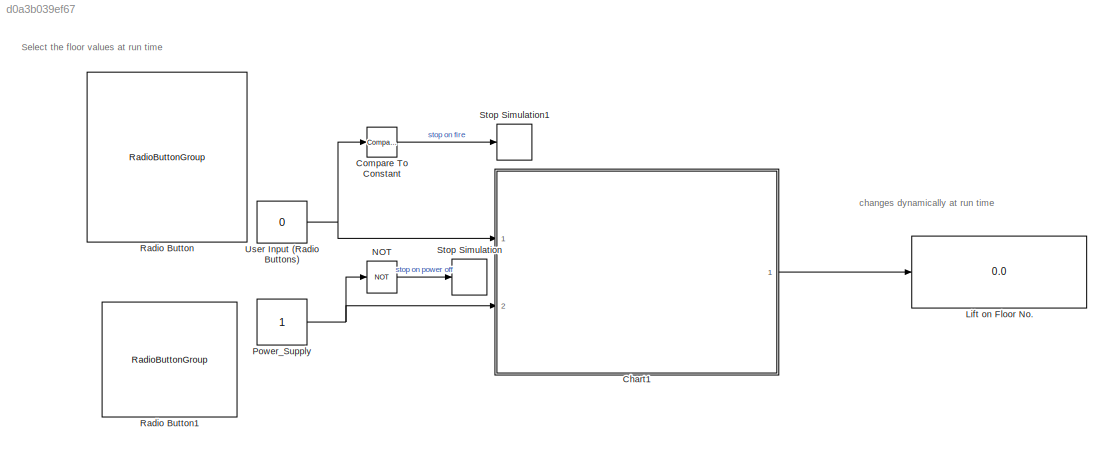
MODEL slx_d0a3b039ef67
KIND model
CONFIG AbsTol = auto
CONFIG EnableMultiTasking = off
CONFIG FixedStep = auto
CONFIG MaxStep = auto
CONFIG MinStep = auto
CONFIG RelTol = 1e-3
CONFIG SampleTimeConstraint = Unconstrained
CONFIG SolverName = VariableStepAuto
CONFIG StartTime = 0.0
CONFIG StopTime = 20
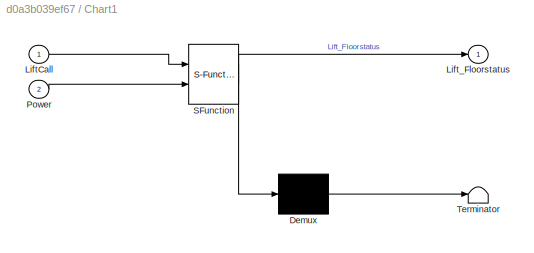
BLOCK [SubSystem] Chart1
  ErrorFcn = Stateflow.Translate.translate
  PermitHierarchicalResolution = ExplicitOnly
  Ports = [2, 1]
  RequestExecContextInheritance = off
  SFBlockType = Chart
  TreatAsAtomicUnit = on
BLOCK [Demux] Chart1/ Demux 
  Outputs = 1
  Ports = [1, 1]
BLOCK [S-Function] Chart1/ SFunction 
  EnableBusSupport = on
  FunctionName = sf_sfun
  PortCounts = [2 2]
  Ports = [2, 2]
  SFcnIsStateOwnerBlock = off
  SFunctionDeploymentMode = off
  Tag = Stateflow S-Function 1
BLOCK [Terminator] Chart1/ Terminator 
BLOCK [Inport] Chart1/LiftCall
BLOCK [Outport] Chart1/Lift_Floorstatus
BLOCK [Inport] Chart1/Power
  Port = 2
BLOCK [Reference] Compare To Constant  REF=simulink/Logic and Bit
Operations/Compare
To Constant
  Ports = [1, 1]
  SourceBlock = simulink/Logic and Bit\nOperations/Compare\nTo Constant
  SourceProductBaseCode = SL
  SourceType = Compare To Constant
BLOCK [Display] Lift on Floor No.
  Decimation = 1
  Ports = [1]
BLOCK [Logic] NOT
  AllPortsSameDT = off
  IconShape = distinctive
  Operator = NOT
  OutDataTypeStr = boolean
  Ports = [1, 1]
BLOCK [Constant] Power_Supply
BLOCK [RadioButtonGroup] Radio Button
  ButtonGroupName = Lift Dashboard
  SelectedLabel = Ground Floor
BLOCK [RadioButtonGroup] Radio Button1
  ButtonGroupName = Power Supply
  SelectedLabel = On
BLOCK [Stop] Stop Simulation
BLOCK [Stop] Stop Simulation1
BLOCK [Constant] User Input (Radio Buttons)
  Value = 0
ANNOTATION (root): Select the floor values at run time
ANNOTATION (root): changes dynamically at run time
LINE Chart1:1 -> Lift on Floor No.:1
LINE Compare To Constant:1 -> Stop Simulation1:1
LINE NOT:1 -> Stop Simulation:1
NET Power_Supply:1 -> Chart1:2, NOT:1
NET User Input (Radio Buttons):1 -> Chart1:1, Compare To Constant:1
note: NET lines group one-source signal fan-out (src -> all destinations, sorted); 1:1 wires keep LINE
CHART Chart1 states=8 transitions=11
  STATE_LABEL 'PowerControl'
  STATE_LABEL 'Idle\nLift_Floorstatus=0;'
  STATE_LABEL 'Active'
  STATE_LABEL '{Lift_Floorstatus=1;}'
  STATE_LABEL '[Power ==1]'
  STATE_LABEL '[Power==0]'
  STATE_LABEL 'Idle\nLift_Floorstatus=0;'
  STATE_LABEL 'Active'
  STATE_LABEL 'Lift_Status\n\n'
  STATE_LABEL 'Up\ndu:Lift_Floorstatus=Lift_Floorstatus+1;'
  STATE_LABEL 'Start\n'
  STATE_LABEL 'Down\ndu:Lift_Floorstatus=Lift_Floorstatus-1;'
  STATE_LABEL 'Wait\n'
  STATE_LABEL '[LiftCall>Lift_Floorstatus && Lift_Floorstatus<5]'
  STATE_LABEL '[LiftCall<Lift_Floorstatus && Lift_Floorstatus>0]'
  STATE_LABEL '[Lift_Floorstatus==LiftCall]'
  STATE_LABEL 'after(1,sec)'
  STATE_LABEL '[Lift_Floorstatus==LiftCall]'
  STATE_LABEL 'Up\ndu:Lift_Floorstatus=Lift_Floorstatus+1;'
  STATE_LABEL 'Start\n'
  STATE_LABEL 'Down\ndu:Lift_Floorstatus=Lift_Floorstatus-1;'
  STATE_LABEL 'Wait\n'
CHART  states=0 transitions=0
